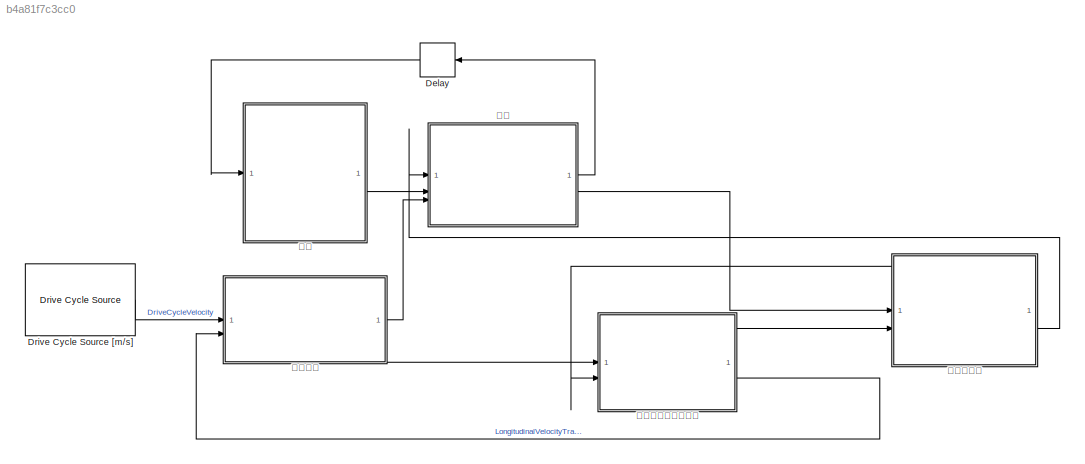
MODEL slx_b4a81f7c3cc0
KIND model
CONFIG AbsTol = auto
CONFIG EnableMultiTasking = off
CONFIG FixedStep = 0.001
CONFIG InitFcn = Vehicle_one_DOF_motor
CONFIG MaxStep = auto
CONFIG MinStep = auto
CONFIG RelTol = 1e-3
CONFIG SampleTimeConstraint = Unconstrained
CONFIG SolverName = ode4
CONFIG StartTime = 0.0
CONFIG StopTime = 2474
BLOCK [Delay] Delay
  DelayLength = 1
  InitialCondition = 0
  InputPortMap = u0
  NameLocation = top
BLOCK [Reference] Drive Cycle Source [m//s]  REF=autolibshared/Drive Cycle Source
  AttributesFormatString = %<cycleVar> (%<tfinal>)
  LibrarySourceBlock = vdynlib/Vehicle Scenarios/Drive Cycle and Maneuvers/Drive Cycle Source
  SourceBlock = autolibshared/Drive Cycle Source
  SourceType = Drive Cycle Source
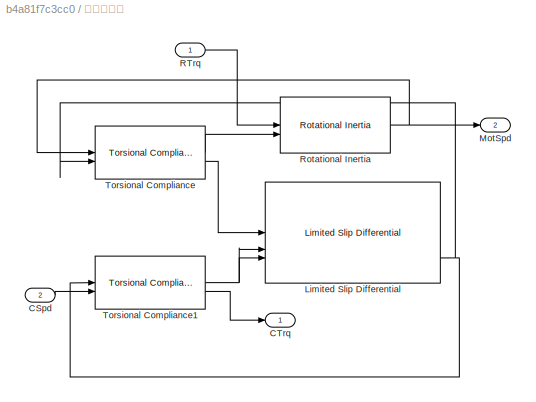
BLOCK [SubSystem] 动力传动链
BLOCK [Inport] 动力传动链/CSpd
  Port = 2
BLOCK [Outport] 动力传动链/CTrq
BLOCK [Reference] 动力传动链/Limited Slip Differential  REF=autolibshareddiff/Limited Slip Differential
  LibrarySourceBlock = vdynlib/Powertrain/Drivetrain/Final Drive Unit/Limited Slip Differential
  SourceBlock = autolibshareddiff/Limited Slip Differential
  SourceType = Limited Slip Differential
BLOCK [Outport] 动力传动链/MotSpd
  Port = 2
BLOCK [Inport] 动力传动链/RTrq
BLOCK [Reference] 动力传动链/Rotational Inertia  REF=autolibsharedcoupling/Rotational Inertia
  LibrarySourceBlock = autolibcoupling/Rotational Inertia
  SourceBlock = autolibsharedcoupling/Rotational Inertia
  SourceType = Rotational Inertia
BLOCK [Reference] 动力传动链/Torsional Compliance  REF=autolibsharedcoupling/Torsional Compliance
  LibrarySourceBlock = autolibcoupling/Torsional Compliance
  SourceBlock = autolibsharedcoupling/Torsional Compliance
  SourceType = Torsional Compliance
BLOCK [Reference] 动力传动链/Torsional Compliance1  REF=autolibsharedcoupling/Torsional Compliance
  LibrarySourceBlock = autolibcoupling/Torsional Compliance
  SourceBlock = autolibsharedcoupling/Torsional Compliance
  SourceType = Torsional Compliance
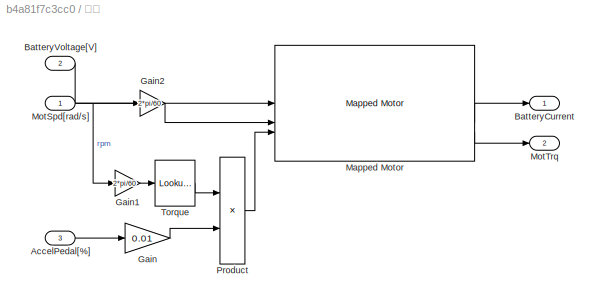
BLOCK [SubSystem] 电机
BLOCK [Inport] 电机/AccelPedal[%]
  Port = 3
BLOCK [Outport] 电机/BatteryCurrent
BLOCK [Inport] 电机/BatteryVoltage[V]
  Port = 2
BLOCK [Gain] 电机/Gain
  Gain = 0.01
BLOCK [Gain] 电机/Gain1
  Gain = 2*pi/60
BLOCK [Gain] 电机/Gain2
  Gain = 2*pi/60
BLOCK [Reference] 电机/Mapped Motor  REF=autolibmappedmotor/Mapped Motor
  LibrarySourceBlock = vdynlib/Powertrain/Propulsion/Mapped Motor
  SourceBlock = autolibmappedmotor/Mapped Motor
  SourceType = MappedMotor
BLOCK [Inport] 电机/MotSpd[rad//s]
BLOCK [Outport] 电机/MotTrq
  Port = 2
BLOCK [Product] 电机/Product
BLOCK [Lookup_n-D] 电机/Torque
  BreakpointsForDimension1 = speed_motor
  InputPortMap = u0
  InternalRulePriority = Speed
  NumberOfTableDimensions = 1
  RndMeth = Simplest
  Table = torque_motor
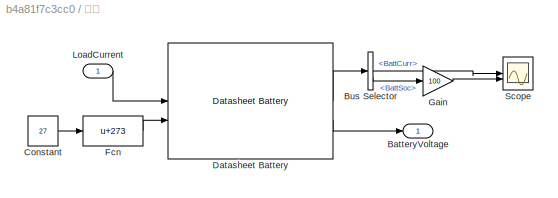
BLOCK [SubSystem] 电池
BLOCK [Outport] 电池/BatteryVoltage
BLOCK [BusSelector] 电池/Bus Selector
  OutputSignals = BattCurr,BattSoc
BLOCK [Constant] 电池/Constant
  Value = 27
BLOCK [Reference] 电池/Datasheet Battery  REF=autolibdatasheetbattery/Datasheet Battery
  SourceBlock = autolibdatasheetbattery/Datasheet Battery
  SourceType = Datasheet Battery
BLOCK [Fcn] 电池/Fcn
  Expr = u+273
BLOCK [Gain] 电池/Gain
  Gain = 100
BLOCK [Inport] 电池/LoadCurrent
BLOCK [Scope] 电池/Scope
  Floating = off
  NumInputPorts = 2
  ScopeSpecificationString = Simulink.scopes.TimeScopeBlockCfg('CurrentConfiguration', extmgr.ConfigurationSet(extmgr.Configuration('Core','General UI',true),extmgr.Configuration('Core','Source UI',true),extmgr.Configuration('Sources','WiredSimulink',true,'DataLoggingVariableName','ScopeData1'),extmgr.Configuration('Visuals','Time Domain',true),extmgr.Configuration('Tools','Plot Navigation',true),extmgr.Configuration('Tools',...<+40ch>
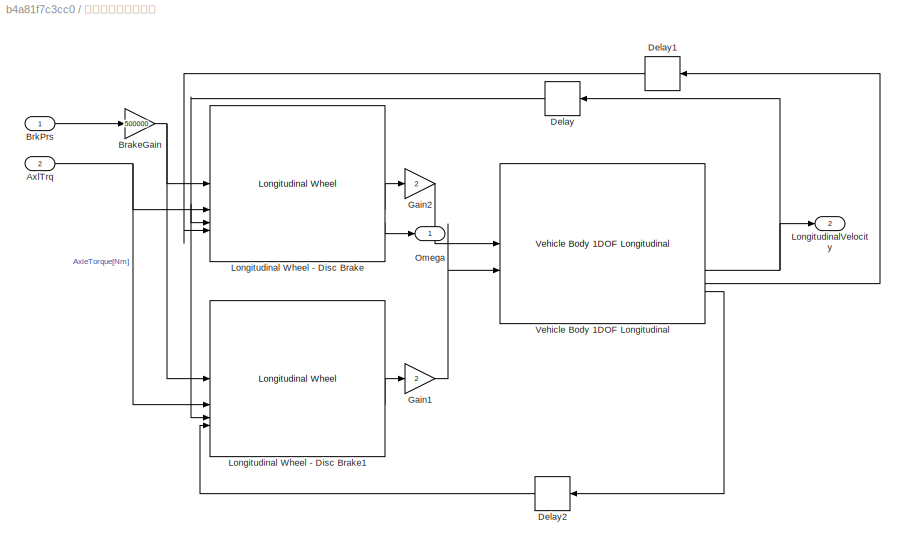
BLOCK [SubSystem] 车辆纵向动力学模型
BLOCK [Inport] 车辆纵向动力学模型/AxlTrq
  Port = 2
  Unit = N*m
BLOCK [Gain] 车辆纵向动力学模型/BrakeGain
  Gain = 500000
BLOCK [Inport] 车辆纵向动力学模型/BrkPrs
BLOCK [Delay] 车辆纵向动力学模型/Delay
  DelayLength = 1
  InputPortMap = u0
  NameLocation = top
BLOCK [Delay] 车辆纵向动力学模型/Delay1
  DelayLength = 1
  InputPortMap = u0
  NameLocation = top
BLOCK [Delay] 车辆纵向动力学模型/Delay2
  DelayLength = 1
  InputPortMap = u0
  NameLocation = top
BLOCK [Gain] 车辆纵向动力学模型/Gain1
  Gain = 2
BLOCK [Gain] 车辆纵向动力学模型/Gain2
  Gain = 2
BLOCK [Reference] 车辆纵向动力学模型/Longitudinal Wheel - Disc Brake  REF=autolibshared/Longitudinal Wheel
  LibrarySourceBlock = vehdynlibtire/Longitudinal Wheel - Disc Brake
  SourceBlock = autolibshared/Longitudinal Wheel
  SourceType = Longitudinal Wheel
BLOCK [Reference] 车辆纵向动力学模型/Longitudinal Wheel - Disc Brake1  REF=autolibshared/Longitudinal Wheel
  LibrarySourceBlock = vehdynlibtire/Longitudinal Wheel - Disc Brake
  SourceBlock = autolibshared/Longitudinal Wheel
  SourceType = Longitudinal Wheel
BLOCK [Outport] 车辆纵向动力学模型/LongitudinalVelocity
  Port = 2
  Unit = m/s
BLOCK [Outport] 车辆纵向动力学模型/Omega
  Unit = rad/s
BLOCK [Reference] 车辆纵向动力学模型/Vehicle Body 1DOF Longitudinal  REF=autolibshared/Vehicle Body 1DOF Longitudinal
  LibrarySourceBlock = vehdynlibeom/Vehicle Body 1DOF Longitudinal
  SourceBlock = autolibshared/Vehicle Body 1DOF Longitudinal
  SourceType = Vehicle Body 1DOF Longitudinal
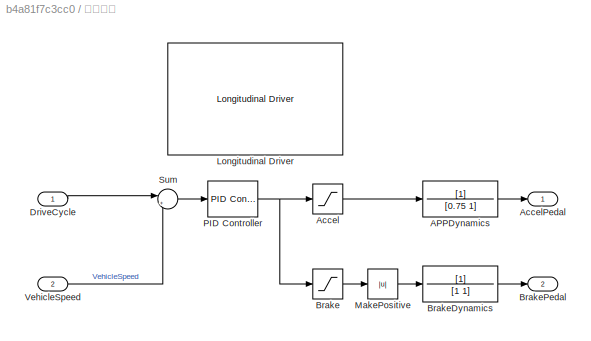
BLOCK [SubSystem] 驾驶意图
BLOCK [TransferFcn] 驾驶意图/APPDynamics
  Denominator = [0.75 1]
BLOCK [Saturate] 驾驶意图/Accel
  LowerLimit = 0
  UpperLimit = 100
BLOCK [Outport] 驾驶意图/AccelPedal
BLOCK [Saturate] 驾驶意图/Brake
  LowerLimit = -100
  UpperLimit = 0
BLOCK [TransferFcn] 驾驶意图/BrakeDynamics
  Denominator = [1 1]
BLOCK [Outport] 驾驶意图/BrakePedal
  Port = 2
BLOCK [Inport] 驾驶意图/DriveCycle
BLOCK [Reference] 驾驶意图/Longitudinal Driver  REF=autolibshared/Longitudinal Driver
  Commented = on
  LibrarySourceBlock = vehdynlibdriver/Longitudinal Driver
  SourceBlock = autolibshared/Longitudinal Driver
  SourceType = Longitudinal Driver
BLOCK [Abs] 驾驶意图/MakePositive
  SaturateOnIntegerOverflow = off
BLOCK [Reference] 驾驶意图/PID Controller  REF=slpidlib/PID Controller
  SourceBlock = slpidlib/PID Controller
  SourceType = PID 1dof
BLOCK [Sum] 驾驶意图/Sum
  Inputs = |+-
BLOCK [Inport] 驾驶意图/VehicleSpeed
  Port = 2
LINE Delay:1 -> 电池:1
LINE Drive Cycle Source [m//s]:1 -> 驾驶意图:1
LINE 动力传动链/CSpd:1 -> 动力传动链/Torsional Compliance1:2
NET 动力传动链/Limited Slip Differential:3 -> 动力传动链/Torsional Compliance1:1, 动力传动链/Torsional Compliance:2
LINE 动力传动链/RTrq:1 -> 动力传动链/Rotational Inertia:1
NET 动力传动链/Rotational Inertia:1 -> 动力传动链/MotSpd:1, 动力传动链/Torsional Compliance:1
NET 动力传动链/Torsional Compliance1:1 -> 动力传动链/Limited Slip Differential:2, 动力传动链/Limited Slip Differential:3
LINE 动力传动链/Torsional Compliance1:2 -> 动力传动链/CTrq:1
LINE 动力传动链/Torsional Compliance:1 -> 动力传动链/Rotational Inertia:2
LINE 动力传动链/Torsional Compliance:2 -> 动力传动链/Limited Slip Differential:1
LINE 动力传动链:1 -> 车辆纵向动力学模型:2
LINE 动力传动链:2 -> 电机:1
LINE 电机/AccelPedal[%]:1 -> 电机/Gain:1
LINE 电机/BatteryVoltage[V]:1 -> 电机/Mapped Motor:1
LINE 电机/Gain1:1 -> 电机/Torque:1
LINE 电机/Gain2:1 -> 电机/Mapped Motor:2
LINE 电机/Gain:1 -> 电机/Product:2
LINE 电机/Mapped Motor:2 -> 电机/BatteryCurrent:1
LINE 电机/Mapped Motor:3 -> 电机/MotTrq:1
NET 电机/MotSpd[rad//s]:1 -> 电机/Gain1:1, 电机/Gain2:1
LINE 电机/Product:1 -> 电机/Mapped Motor:3
LINE 电机/Torque:1 -> 电机/Product:1
LINE 电机:1 -> Delay:1
LINE 电机:2 -> 动力传动链:1
LINE 电池/Bus Selector:1 -> 电池/Scope:1
LINE 电池/Bus Selector:2 -> 电池/Gain:1
LINE 电池/Constant:1 -> 电池/Fcn:1
LINE 电池/Datasheet Battery:1 -> 电池/Bus Selector:1
LINE 电池/Datasheet Battery:2 -> 电池/BatteryVoltage:1
LINE 电池/Fcn:1 -> 电池/Datasheet Battery:2
LINE 电池/Gain:1 -> 电池/Scope:2
LINE 电池/LoadCurrent:1 -> 电池/Datasheet Battery:1
LINE 电池:1 -> 电机:2
NET 车辆纵向动力学模型/AxlTrq:1 -> 车辆纵向动力学模型/Longitudinal Wheel - Disc Brake1:2, 车辆纵向动力学模型/Longitudinal Wheel - Disc Brake:2
NET 车辆纵向动力学模型/BrakeGain:1 -> 车辆纵向动力学模型/Longitudinal Wheel - Disc Brake1:1, 车辆纵向动力学模型/Longitudinal Wheel - Disc Brake:1
LINE 车辆纵向动力学模型/BrkPrs:1 -> 车辆纵向动力学模型/BrakeGain:1
LINE 车辆纵向动力学模型/Delay1:1 -> 车辆纵向动力学模型/Longitudinal Wheel - Disc Brake:4
LINE 车辆纵向动力学模型/Delay2:1 -> 车辆纵向动力学模型/Longitudinal Wheel - Disc Brake1:4
NET 车辆纵向动力学模型/Delay:1 -> 车辆纵向动力学模型/Longitudinal Wheel - Disc Brake1:3, 车辆纵向动力学模型/Longitudinal Wheel - Disc Brake:3
LINE 车辆纵向动力学模型/Gain1:1 -> 车辆纵向动力学模型/Vehicle Body 1DOF Longitudinal:2
LINE 车辆纵向动力学模型/Gain2:1 -> 车辆纵向动力学模型/Vehicle Body 1DOF Longitudinal:1
LINE 车辆纵向动力学模型/Longitudinal Wheel - Disc Brake1:2 -> 车辆纵向动力学模型/Gain1:1
LINE 车辆纵向动力学模型/Longitudinal Wheel - Disc Brake:2 -> 车辆纵向动力学模型/Gain2:1
LINE 车辆纵向动力学模型/Longitudinal Wheel - Disc Brake:3 -> 车辆纵向动力学模型/Omega:1
NET 车辆纵向动力学模型/Vehicle Body 1DOF Longitudinal:2 -> 车辆纵向动力学模型/Delay:1, 车辆纵向动力学模型/LongitudinalVelocity:1
LINE 车辆纵向动力学模型/Vehicle Body 1DOF Longitudinal:3 -> 车辆纵向动力学模型/Delay1:1
LINE 车辆纵向动力学模型/Vehicle Body 1DOF Longitudinal:4 -> 车辆纵向动力学模型/Delay2:1
LINE 车辆纵向动力学模型:1 -> 动力传动链:2
LINE 车辆纵向动力学模型:2 -> 驾驶意图:2
LINE 驾驶意图/APPDynamics:1 -> 驾驶意图/AccelPedal:1
LINE 驾驶意图/Accel:1 -> 驾驶意图/APPDynamics:1
LINE 驾驶意图/Brake:1 -> 驾驶意图/MakePositive:1
LINE 驾驶意图/BrakeDynamics:1 -> 驾驶意图/BrakePedal:1
LINE 驾驶意图/DriveCycle:1 -> 驾驶意图/Sum:1
LINE 驾驶意图/MakePositive:1 -> 驾驶意图/BrakeDynamics:1
NET 驾驶意图/PID Controller:1 -> 驾驶意图/Accel:1, 驾驶意图/Brake:1
LINE 驾驶意图/Sum:1 -> 驾驶意图/PID Controller:1
LINE 驾驶意图/VehicleSpeed:1 -> 驾驶意图/Sum:2
LINE 驾驶意图:1 -> 电机:3
LINE 驾驶意图:2 -> 车辆纵向动力学模型:1
note: NET lines group one-source signal fan-out (src -> all destinations, sorted); 1:1 wires keep LINE
